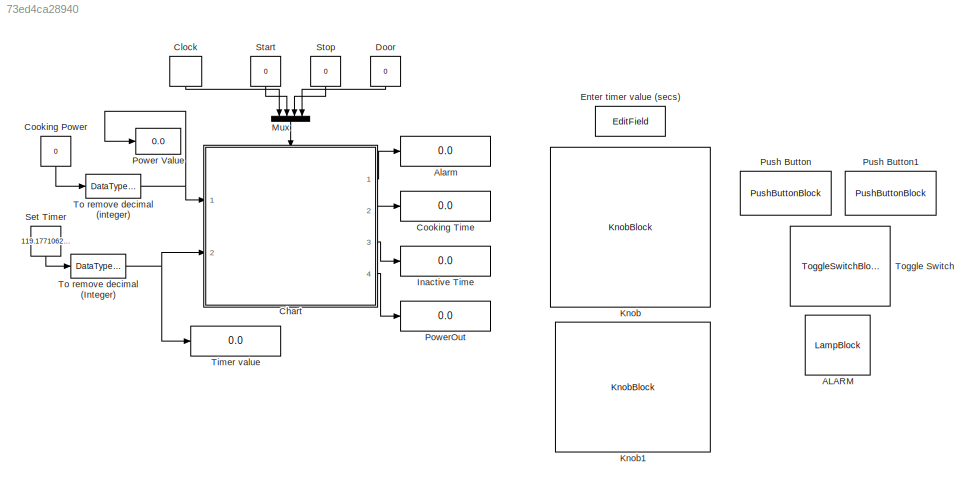
MODEL slx_73ed4ca28940
KIND model
CONFIG AbsTol = auto
CONFIG EnableMultiTasking = off
CONFIG FixedStep = auto
CONFIG MaxStep = auto
CONFIG MinStep = auto
CONFIG RelTol = 1e-3
CONFIG SampleTimeConstraint = Unconstrained
CONFIG Solver = VariableStepAuto
CONFIG SolverName = VariableStepAuto
CONFIG StartTime = 0.0
CONFIG StopTime = 500
BLOCK [LampBlock] ALARM
BLOCK [Display] Alarm
  Decimation = 1
  Ports = [1]
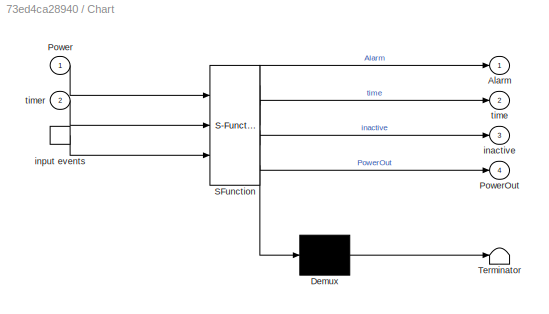
BLOCK [SubSystem] Chart
  ErrorFcn = Stateflow.Translate.translate
  PermitHierarchicalResolution = ExplicitOnly
  Ports = [2, 4, 0, 1]
  RequestExecContextInheritance = off
  SFBlockType = Chart
  TreatAsAtomicUnit = on
BLOCK [Demux] Chart/ Demux 
  Outputs = 1
  Ports = [1, 1]
BLOCK [S-Function] Chart/ SFunction 
  EnableBusSupport = on
  FunctionName = sf_sfun
  PortCounts = [3 5]
  Ports = [3, 5]
  SFcnIsStateOwnerBlock = off
  SFunctionDeploymentMode = off
  Tag = Stateflow S-Function 3
BLOCK [Terminator] Chart/ Terminator 
BLOCK [Outport] Chart/Alarm
BLOCK [Inport] Chart/Power
BLOCK [Outport] Chart/PowerOut
  Port = 4
BLOCK [Outport] Chart/inactive
  Port = 3
BLOCK [TriggerPort] Chart/input events
  Ports = [0, 1]
  ShowOutputPort = on
  StatesWhenEnabling = held
  TriggerType = either
  VariantControl = (inherit)
BLOCK [Outport] Chart/time
  Port = 2
BLOCK [Inport] Chart/timer
  Port = 2
BLOCK [DiscretePulseGenerator] Clock
  NameLocation = top
  Period = 1
  Ports = [0, 1]
  PulseType = Time based
  PulseWidth = 50
BLOCK [Constant] Cooking Power
  NameLocation = top
  OutDataTypeStr = uint32
  Value = 0
BLOCK [Display] Cooking Time
  Decimation = 1
  Ports = [1]
BLOCK [Constant] Door
  NameLocation = top
  Value = 0
BLOCK [EditField] Enter timer value (secs)
  Alignment = Center
  LabelPosition = Hide
  NameLocation = top
  ShowInitialText = on
  Tag = Enter timer value
BLOCK [Display] Inactive Time
  Decimation = 1
  Ports = [1]
BLOCK [KnobBlock] Knob
  ScaleMax = 1000
  TickInterval = 100
BLOCK [KnobBlock] Knob1
  ScaleMax = 800
  TickInterval = 100
BLOCK [Mux] Mux
  DisplayOption = bar
  NameLocation = left
  Ports = [4, 1]
BLOCK [Display] Power Value
  Decimation = 1
  Ports = [1]
BLOCK [Display] PowerOut
  Decimation = 1
  Ports = [1]
BLOCK [PushButtonBlock] Push Button
  ButtonText = Start
BLOCK [PushButtonBlock] Push Button1
  ButtonText = Stop
BLOCK [Constant] Set Timer
  NameLocation = top
  OutDataTypeStr = uint32
  Value = 119.1771062215169
BLOCK [Constant] Start
  NameLocation = top
  Value = 0
BLOCK [Constant] Stop
  NameLocation = top
  Value = 0
BLOCK [Display] Timer value
  Decimation = 1
  Ports = [1]
BLOCK [DataTypeConversion] To remove decimal (Integer)
  OutDataTypeStr = double
  RndMeth = Floor
  SaturateOnIntegerOverflow = off
BLOCK [DataTypeConversion] To remove decimal (integer)
  OutDataTypeStr = double
  RndMeth = Floor
  SaturateOnIntegerOverflow = off
BLOCK [ToggleSwitchBlock] Toggle Switch
  LabelPosition = Hide
LINE Chart:1 -> Alarm:1
LINE Chart:2 -> Cooking Time:1
LINE Chart:3 -> Inactive Time:1
LINE Chart:4 -> PowerOut:1
LINE Clock:1 -> Mux:1
LINE Cooking Power:1 -> To remove decimal (integer):1
LINE Door:1 -> Mux:4
LINE Mux:1 -> Chart:trigger
LINE Set Timer:1 -> To remove decimal (Integer):1
LINE Start:1 -> Mux:2
LINE Stop:1 -> Mux:3
NET To remove decimal (Integer):1 -> Chart:2, Timer value:1
NET To remove decimal (integer):1 -> Chart:1, Power Value:1
note: NET lines group one-source signal fan-out (src -> all destinations, sorted); 1:1 wires keep LINE
CHART Chart states=9 transitions=15
  STATE_LABEL 'decrease_time'
  STATE_LABEL 'SCRIPT:\nfunction decrease_time\nif newT == T\n    if reset == 0\n        time = time-1;\n        if time<=0\n            reset = 1;\n        end\n    end\nelse T=newT;\n    time = newT;\nend\n\n\n'
  STATE_LABEL 'inactive_time'
  STATE_LABEL 'SCRIPT:\nfunction inactive_time\ninactive = inactive+1;\nif inactive>=10\n    time=0;\n    inactive = 0;\nend\nif hasChanged(timer)\n    inactive=0;\nend\n\n\n\n \n'
  STATE_LABEL 'TimeState\ntime = timer;T= timer;\nPowerOut=Power;\nen: inactive=0;\non TIC: inactive_time();'
  STATE_LABEL 'CookingState\nAlarm=0;\nnewT= timer;\non TIC: decrease_time();'
  STATE_LABEL 'IdleState\nen: time=0;\ndu: PowerOut=Power;'
  STATE_LABEL 'StopState\nen: reset=1; inactive=0;\non TIC: inactive_time();\n'
  STATE_LABEL 'Door\nreset=1;\n'
  STATE_LABEL 'InactiveTime\nen: inactive=0;\non TIC: inactive_time();'
  STATE_LABEL 'DoorState\nreset=1;\n'
CHART  states=0 transitions=0
